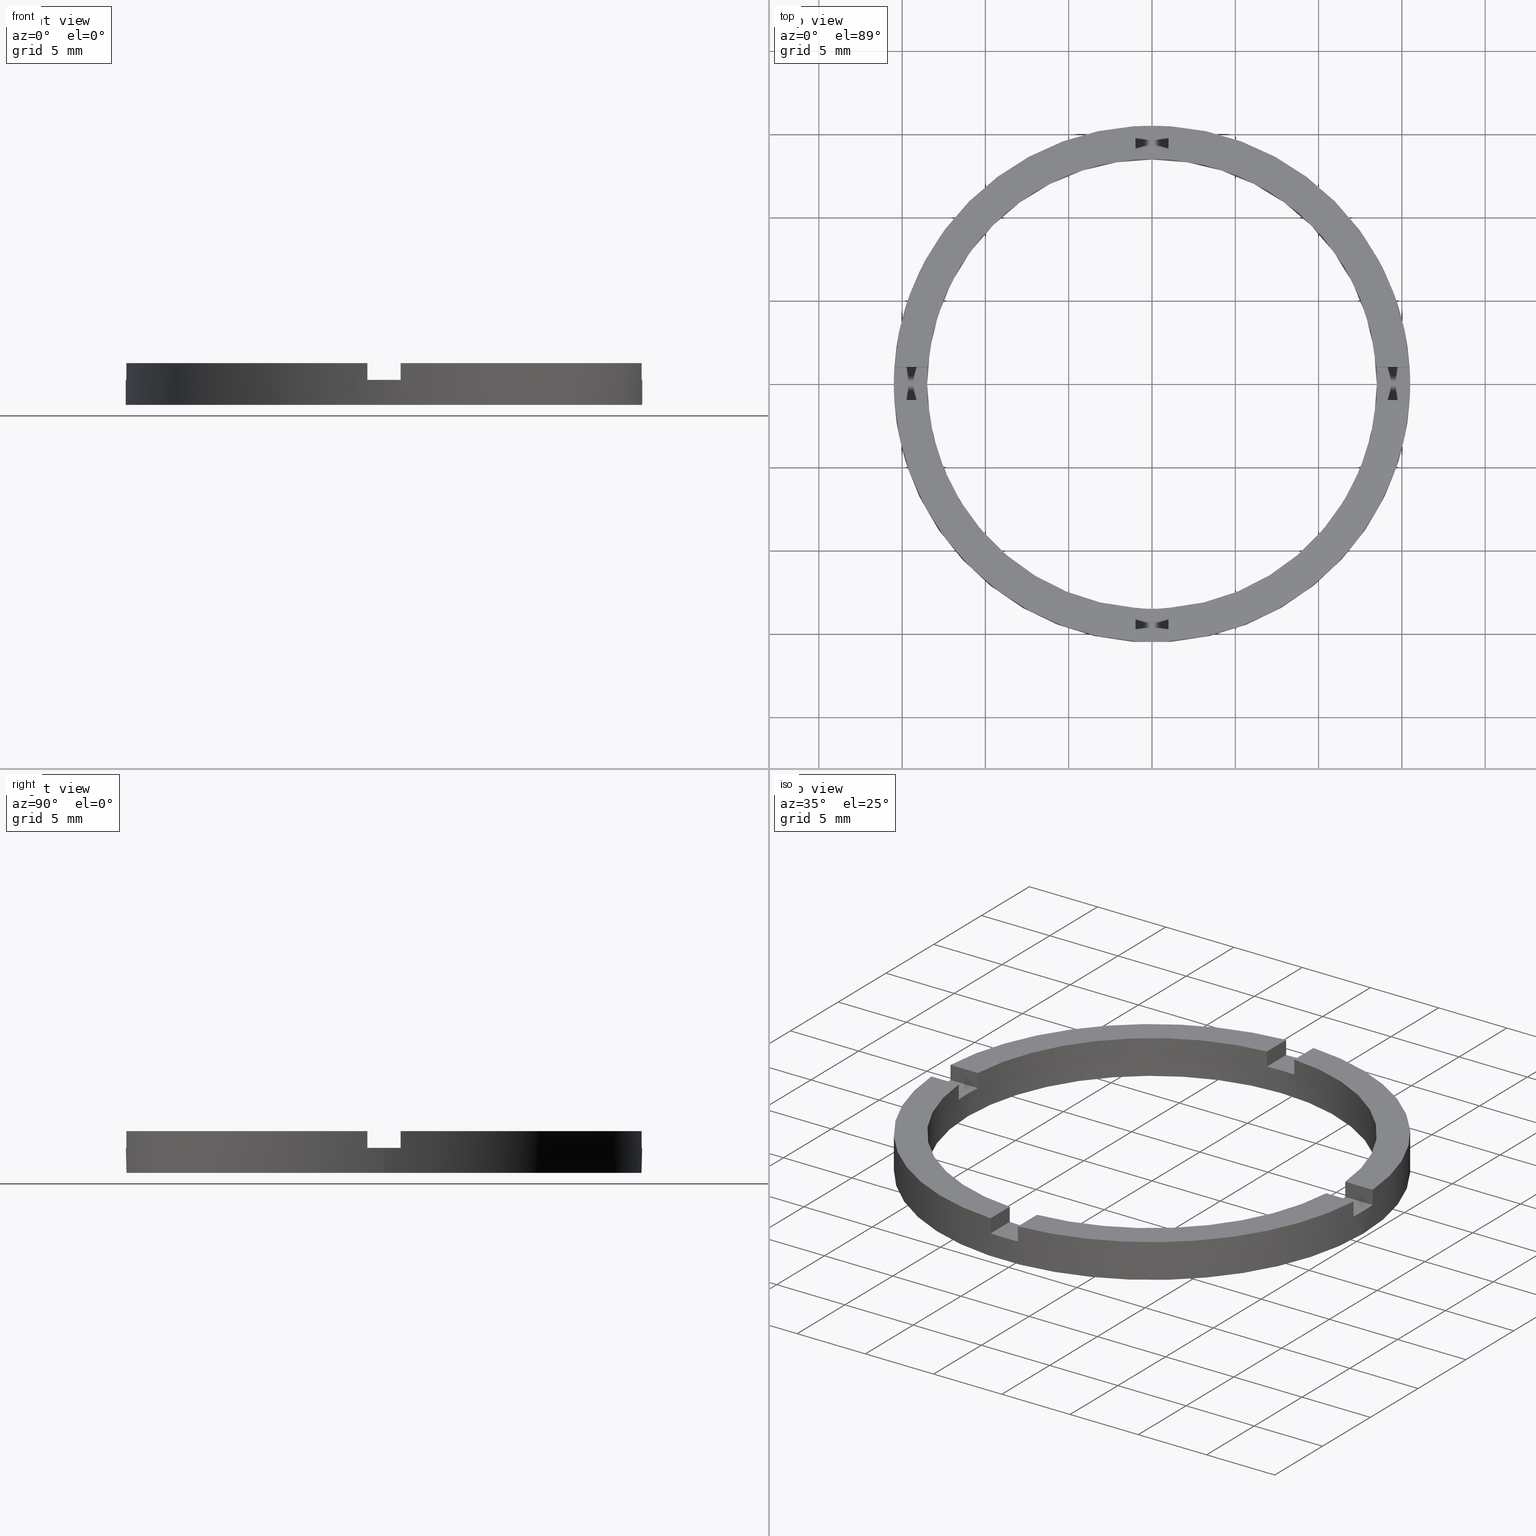
[diagram: canonical four-view strip — front | top / right | iso, engineering-drawing reading convention]
A machine part, canonical four-view strip (front | top / right | iso — engineering-drawing reading convention). The complete STEP part file that produces these views, byte-faithful:
ISO-10303-21;
HEADER;
FILE_DESCRIPTION (( 'STEP AP203' ),
    '1' );
FILE_NAME ('514068.step',
    '2024-12-26T02:34:30',
    ( 'MSI' ),
    ( '' ),
    'SwSTEP 2.0',
    'SolidWorks 2020',
    '' );
FILE_SCHEMA (( 'CONFIG_CONTROL_DESIGN' ));
ENDSEC;

DATA;
#1 = CARTESIAN_POINT ( 'NONE',  ( 13.46291201783627045, 0.9999999999998409050, 2.500000000000000000 ) ) ;
#2 = COORDINATED_UNIVERSAL_TIME_OFFSET ( 8, 0, .AHEAD. ) ;
#3 = CC_DESIGN_APPROVAL ( #642, ( #403 ) ) ;
#4 = EDGE_CURVE ( 'NONE', #238, #32, #122, .T. ) ;
#5 = APPROVAL_STATUS ( 'not_yet_approved' ) ;
#6 = CARTESIAN_POINT ( 'NONE',  ( -1.000000000000162981, -13.46291201783624736, 1.500000000000000000 ) ) ;
#7 = CARTESIAN_POINT ( 'NONE',  ( 0.9999999999998371303, -15.46770829825802984, 1.500000000000000000 ) ) ;
#8 = CARTESIAN_POINT ( 'NONE',  ( 0.9999999999998371303, -15.46770829825802984, 2.500000000000000000 ) ) ;
#9 = PLANE ( 'NONE',  #63 ) ;
#10 = DIRECTION ( 'NONE',  ( 0.000000000000000000, 0.000000000000000000, 1.000000000000000000 ) ) ;
#11 = DIRECTION ( 'NONE',  ( 0.000000000000000000, 0.000000000000000000, 1.000000000000000000 ) ) ;
#12 = VERTEX_POINT ( 'NONE', #776 ) ;
#13 = CARTESIAN_POINT ( 'NONE',  ( -1.000000000000164091, -5.500000000000180300, 1.500000000000000000 ) ) ;
#14 = VERTEX_POINT ( 'NONE', #58 ) ;
#15 = CARTESIAN_POINT ( 'NONE',  ( -15.46770829825801741, -1.000000000000023315, 1.500000000000000000 ) ) ;
#16 = ORIENTED_EDGE ( 'NONE', *, *, #91, .T. ) ;
#17 = AXIS2_PLACEMENT_3D ( 'NONE', #424, #545, #259 ) ;
#18 = ORIENTED_EDGE ( 'NONE', *, *, #701, .F. ) ;
#19 = DIRECTION ( 'NONE',  ( 1.000000000000000000, 0.000000000000000000, 0.000000000000000000 ) ) ;
#20 = PERSON_AND_ORGANIZATION_ROLE ( 'creator' ) ;
#21 = ORIENTED_EDGE ( 'NONE', *, *, #74, .T. ) ;
#22 = CARTESIAN_POINT ( 'NONE',  ( 0.000000000000000000, 0.000000000000000000, 2.500000000000000000 ) ) ;
#23 = EDGE_LOOP ( 'NONE', ( #46, #42, #447, #30 ) ) ;
#24 = ORIENTED_EDGE ( 'NONE', *, *, #778, .F. ) ;
#25 = DIRECTION ( 'NONE',  ( 0.000000000000000000, 0.000000000000000000, 1.000000000000000000 ) ) ;
#26 = VERTEX_POINT ( 'NONE', #587 ) ;
#27 = EDGE_CURVE ( 'NONE', #465, #382, #358, .T. ) ;
#28 = CARTESIAN_POINT ( 'NONE',  ( 0.000000000000000000, 0.000000000000000000, 1.500000000000000000 ) ) ;
#29 = DIRECTION ( 'NONE',  ( 1.000000000000000000, 0.000000000000000000, 0.000000000000000000 ) ) ;
#30 = ORIENTED_EDGE ( 'NONE', *, *, #718, .F. ) ;
#31 = MANIFOLD_SOLID_BREP ( '�г�-����1', #169 ) ;
#32 = VERTEX_POINT ( 'NONE', #53 ) ;
#33 = ORIENTED_EDGE ( 'NONE', *, *, #467, .T. ) ;
#34 = CARTESIAN_POINT ( 'NONE',  ( -1.000000000000024869, 5.500000000000000000, 1.500000000000000000 ) ) ;
#35 = VERTEX_POINT ( 'NONE', #281 ) ;
#36 = CARTESIAN_POINT ( 'NONE',  ( 0.000000000000000000, 0.000000000000000000, 1.500000000000000000 ) ) ;
#37 = CARTESIAN_POINT ( 'NONE',  ( -1.000000000000024869, 5.500000000000000000, 1.500000000000000000 ) ) ;
#38 = ORIENTED_EDGE ( 'NONE', *, *, #70, .T. ) ;
#39 = ORIENTED_EDGE ( 'NONE', *, *, #380, .F. ) ;
#40 = CC_DESIGN_APPROVAL ( #632, ( #665 ) ) ;
#41 = ORIENTED_EDGE ( 'NONE', *, *, #456, .T. ) ;
#42 = ORIENTED_EDGE ( 'NONE', *, *, #95, .T. ) ;
#43 = DIRECTION ( 'NONE',  ( 1.000000000000000000, 0.000000000000000000, 0.000000000000000000 ) ) ;
#44 = CARTESIAN_POINT ( 'NONE',  ( -1.000000000000024869, 13.46291201783625802, 2.500000000000000000 ) ) ;
#45 = PLANE ( 'NONE',  #160 ) ;
#46 = ORIENTED_EDGE ( 'NONE', *, *, #534, .T. ) ;
#47 = ORIENTED_EDGE ( 'NONE', *, *, #440, .F. ) ;
#48 = ORIENTED_EDGE ( 'NONE', *, *, #70, .F. ) ;
#49 = ORIENTED_EDGE ( 'NONE', *, *, #293, .T. ) ;
#50 = ORIENTED_EDGE ( 'NONE', *, *, #91, .F. ) ;
#51 = ORIENTED_EDGE ( 'NONE', *, *, #155, .T. ) ;
#52 = VERTEX_POINT ( 'NONE', #349 ) ;
#53 = CARTESIAN_POINT ( 'NONE',  ( 0.9999999999998369082, -13.46291201783627045, 2.500000000000000000 ) ) ;
#54 = EDGE_LOOP ( 'NONE', ( #204, #300, #460, #547, #566, #443 ) ) ;
#55 = VERTEX_POINT ( 'NONE', #590 ) ;
#56 = ORIENTED_EDGE ( 'NONE', *, *, #67, .F. ) ;
#57 = ORIENTED_EDGE ( 'NONE', *, *, #671, .F. ) ;
#58 = CARTESIAN_POINT ( 'NONE',  ( -1.000000000000162759, -15.46770829825800853, 2.500000000000000000 ) ) ;
#59 = ORIENTED_EDGE ( 'NONE', *, *, #583, .T. ) ;
#60 = CARTESIAN_POINT ( 'NONE',  ( 0.000000000000000000, 0.000000000000000000, 2.500000000000000000 ) ) ;
#61 = ADVANCED_FACE ( 'NONE', ( #120 ), #45, .F. ) ;
#62 = ORIENTED_EDGE ( 'NONE', *, *, #534, .F. ) ;
#63 = AXIS2_PLACEMENT_3D ( 'NONE', #13, #77, #345 ) ;
#64 = ORIENTED_EDGE ( 'NONE', *, *, #184, .T. ) ;
#65 = DIRECTION ( 'NONE',  ( 1.000000000000000000, 1.734723475976807094E-16, 0.000000000000000000 ) ) ;
#66 = VERTEX_POINT ( 'NONE', #528 ) ;
#67 = EDGE_CURVE ( 'NONE', #245, #66, #112, .T. ) ;
#68 = ORIENTED_EDGE ( 'NONE', *, *, #347, .T. ) ;
#69 = PERSON_AND_ORGANIZATION_ROLE ( 'creator' ) ;
#70 = EDGE_CURVE ( 'NONE', #436, #298, #364, .T. ) ;
#71 = AXIS2_PLACEMENT_3D ( 'NONE', #684, #144, #339 ) ;
#72 = DIRECTION ( 'NONE',  ( 0.000000000000000000, 0.000000000000000000, 1.000000000000000000 ) ) ;
#73 = DIRECTION ( 'NONE',  ( 1.000000000000000000, 0.000000000000000000, 0.000000000000000000 ) ) ;
#74 = EDGE_CURVE ( 'NONE', #738, #311, #630, .T. ) ;
#75 = PRODUCT_RELATED_PRODUCT_CATEGORY ( 'detail', '', ( #552 ) ) ;
#76 = AXIS2_PLACEMENT_3D ( 'NONE', #472, #782, #645 ) ;
#77 = DIRECTION ( 'NONE',  ( -1.000000000000000000, -1.301042606982605321E-16, 0.000000000000000000 ) ) ;
#78 = DIRECTION ( 'NONE',  ( 4.336808689942017736E-17, -1.000000000000000000, 0.000000000000000000 ) ) ;
#79 = PLANE ( 'NONE',  #381 ) ;
#80 = CARTESIAN_POINT ( 'NONE',  ( 0.000000000000000000, 0.000000000000000000, 2.500000000000000000 ) ) ;
#81 = CARTESIAN_POINT ( 'NONE',  ( -1.000000000000164091, -5.500000000000180300, 2.500000000000000000 ) ) ;
#82 = AXIS2_PLACEMENT_3D ( 'NONE', #342, #10, #330 ) ;
#83 = DIRECTION ( 'NONE',  ( 1.000000000000000000, 0.000000000000000000, 0.000000000000000000 ) ) ;
#84 = PLANE ( 'NONE',  #689 ) ;
#85 = DIRECTION ( 'NONE',  ( 0.000000000000000000, -0.000000000000000000, 1.000000000000000000 ) ) ;
#86 = AXIS2_PLACEMENT_3D ( 'NONE', #768, #673, #621 ) ;
#87 = DIRECTION ( 'NONE',  ( -1.301042606982605321E-16, 1.000000000000000000, -0.000000000000000000 ) ) ;
#88 = CARTESIAN_POINT ( 'NONE',  ( -15.46770829825802096, 0.9999999999999767963, 2.500000000000000000 ) ) ;
#89 = ADVANCED_FACE ( 'NONE', ( #631 ), #9, .F. ) ;
#90 = FACE_OUTER_BOUND ( 'NONE', #301, .T. ) ;
#91 = EDGE_CURVE ( 'NONE', #230, #436, #648, .T. ) ;
#92 = PLANE ( 'NONE',  #267 ) ;
#93 = CYLINDRICAL_SURFACE ( 'NONE', #370, 15.50000000000000000 ) ;
#94 = VECTOR ( 'NONE', #357, 1000.000000000000000 ) ;
#95 = EDGE_CURVE ( 'NONE', #12, #280, #373, .T. ) ;
#96 = CARTESIAN_POINT ( 'NONE',  ( 0.000000000000000000, 0.000000000000000000, 0.000000000000000000 ) ) ;
#97 = VECTOR ( 'NONE', #783, 1000.000000000000000 ) ;
#98 = ADVANCED_FACE ( 'NONE', ( #392 ), #93, .T. ) ;
#99 = LINE ( 'NONE', #661, #384 ) ;
#100 = APPROVAL_ROLE ( '' ) ;
#101 = DIRECTION ( 'NONE',  ( 1.000000000000000000, 0.000000000000000000, -0.000000000000000000 ) ) ;
#102 = VECTOR ( 'NONE', #335, 1000.000000000000000 ) ;
#103 = EDGE_CURVE ( 'NONE', #736, #280, #643, .T. ) ;
#104 = CARTESIAN_POINT ( 'NONE',  ( -1.000000000000024869, 15.46770829825801741, 2.500000000000000000 ) ) ;
#105 = VECTOR ( 'NONE', #338, 1000.000000000000000 ) ;
#106 = LINE ( 'NONE', #255, #116 ) ;
#107 = CIRCLE ( 'NONE', #416, 13.50000000000000000 ) ;
#108 = CC_DESIGN_PERSON_AND_ORGANIZATION_ASSIGNMENT ( #505, #69, ( #665 ) ) ;
#109 = LINE ( 'NONE', #272, #619 ) ;
#110 = ADVANCED_BREP_SHAPE_REPRESENTATION ( '514068', ( #31, #176 ), #464 ) ;
#111 = CARTESIAN_POINT ( 'NONE',  ( 13.46291201783627045, 0.9999999999998409050, 2.500000000000000000 ) ) ;
#112 = LINE ( 'NONE', #709, #114 ) ;
#113 = AXIS2_PLACEMENT_3D ( 'NONE', #136, #755, #147 ) ;
#114 = VECTOR ( 'NONE', #475, 1000.000000000000000 ) ;
#115 = DIRECTION ( 'NONE',  ( 1.301042606982605321E-16, -1.000000000000000000, 0.000000000000000000 ) ) ;
#116 = VECTOR ( 'NONE', #115, 1000.000000000000000 ) ;
#117 = CIRCLE ( 'NONE', #448, 15.50000000000000000 ) ;
#118 = CARTESIAN_POINT ( 'NONE',  ( 0.000000000000000000, 0.000000000000000000, 2.500000000000000000 ) ) ;
#119 = LINE ( 'NONE', #606, #362 ) ;
#120 = FACE_OUTER_BOUND ( 'NONE', #313, .T. ) ;
#121 = EDGE_CURVE ( 'NONE', #218, #186, #616, .T. ) ;
#122 = LINE ( 'NONE', #722, #620 ) ;
#123 = PLANE ( 'NONE',  #488 ) ;
#124 = FACE_OUTER_BOUND ( 'NONE', #375, .T. ) ;
#125 = AXIS2_PLACEMENT_3D ( 'NONE', #405, #629, #687 ) ;
#126 = LINE ( 'NONE', #127, #128 ) ;
#127 = CARTESIAN_POINT ( 'NONE',  ( 13.46291201783624736, -1.000000000000159206, 2.500000000000000000 ) ) ;
#128 = VECTOR ( 'NONE', #11, 1000.000000000000000 ) ;
#129 = APPLICATION_CONTEXT ( 'configuration controlled 3d designs of mechanical parts and assemblies' ) ;
#130 = CIRCLE ( 'NONE', #656, 13.50000000000000000 ) ;
#131 = EDGE_CURVE ( 'NONE', #571, #208, #634, .T. ) ;
#132 = CARTESIAN_POINT ( 'NONE',  ( -1.000000000000162981, -13.46291201783624736, 2.500000000000000000 ) ) ;
#133 = AXIS2_PLACEMENT_3D ( 'NONE', #686, #377, #139 ) ;
#134 = CARTESIAN_POINT ( 'NONE',  ( 0.9999999999999751310, 13.46291201783626335, 2.500000000000000000 ) ) ;
#135 = DIRECTION ( 'NONE',  ( 1.000000000000000000, 1.734723475976807094E-16, -0.000000000000000000 ) ) ;
#136 = CARTESIAN_POINT ( 'NONE',  ( 0.000000000000000000, 0.000000000000000000, 1.500000000000000000 ) ) ;
#137 = SECURITY_CLASSIFICATION_LEVEL ( 'unclassified' ) ;
#138 = AXIS2_PLACEMENT_3D ( 'NONE', #28, #337, #83 ) ;
#139 = DIRECTION ( 'NONE',  ( -1.000000000000000000, 0.000000000000000000, 0.000000000000000000 ) ) ;
#140 = VECTOR ( 'NONE', #419, 1000.000000000000000 ) ;
#141 = LINE ( 'NONE', #88, #178 ) ;
#142 = EDGE_CURVE ( 'NONE', #239, #437, #369, .T. ) ;
#143 = LINE ( 'NONE', #521, #662 ) ;
#144 = DIRECTION ( 'NONE',  ( 0.000000000000000000, 0.000000000000000000, 1.000000000000000000 ) ) ;
#145 = CIRCLE ( 'NONE', #536, 13.50000000000000000 ) ;
#146 = DIRECTION ( 'NONE',  ( 1.000000000000000000, 0.000000000000000000, -0.000000000000000000 ) ) ;
#147 = DIRECTION ( 'NONE',  ( 1.000000000000000000, 0.000000000000000000, 0.000000000000000000 ) ) ;
#148 = FACE_OUTER_BOUND ( 'NONE', #327, .T. ) ;
#149 = CIRCLE ( 'NONE', #774, 13.50000000000000000 ) ;
#150 = DIRECTION ( 'NONE',  ( 0.000000000000000000, 0.000000000000000000, 1.000000000000000000 ) ) ;
#151 = AXIS2_PLACEMENT_3D ( 'NONE', #22, #264, #614 ) ;
#152 = DIRECTION ( 'NONE',  ( 1.000000000000000000, 0.000000000000000000, -0.000000000000000000 ) ) ;
#153 = CIRCLE ( 'NONE', #433, 15.50000000000000000 ) ;
#154 = DIRECTION ( 'NONE',  ( 1.000000000000000000, 1.734723475976807094E-16, -0.000000000000000000 ) ) ;
#155 = EDGE_CURVE ( 'NONE', #218, #738, #389, .T. ) ;
#156 = CARTESIAN_POINT ( 'NONE',  ( 0.000000000000000000, 0.000000000000000000, 1.500000000000000000 ) ) ;
#157 = DIRECTION ( 'NONE',  ( 1.000000000000000000, 0.000000000000000000, 0.000000000000000000 ) ) ;
#158 = ADVANCED_FACE ( 'NONE', ( #387 ), #636, .F. ) ;
#159 = VECTOR ( 'NONE', #236, 1000.000000000000000 ) ;
#160 = AXIS2_PLACEMENT_3D ( 'NONE', #707, #466, #237 ) ;
#161 = LINE ( 'NONE', #240, #431 ) ;
#162 = ORIENTED_EDGE ( 'NONE', *, *, #671, .T. ) ;
#163 = VECTOR ( 'NONE', #223, 1000.000000000000000 ) ;
#164 = DIRECTION ( 'NONE',  ( 0.000000000000000000, 0.000000000000000000, 1.000000000000000000 ) ) ;
#165 = ORIENTED_EDGE ( 'NONE', *, *, #604, .F. ) ;
#166 = CIRCLE ( 'NONE', #86, 15.50000000000000000 ) ;
#167 = VERTEX_POINT ( 'NONE', #531 ) ;
#168 = LINE ( 'NONE', #1, #140 ) ;
#169 = CLOSED_SHELL ( 'NONE', ( #352, #650, #468, #407, #170, #415, #535, #98, #233, #346, #292, #775, #708, #89, #770, #61, #283, #599, #158, #657, #716 ) ) ;
#170 = ADVANCED_FACE ( 'NONE', ( #90 ), #92, .T. ) ;
#171 = FACE_OUTER_BOUND ( 'NONE', #724, .T. ) ;
#172 = PERSON_AND_ORGANIZATION_ROLE ( 'classification_officer' ) ;
#173 = CARTESIAN_POINT ( 'NONE',  ( 15.46770829825800853, -1.000000000000159206, 2.500000000000000000 ) ) ;
#174 = ORIENTED_EDGE ( 'NONE', *, *, #257, .F. ) ;
#175 = VECTOR ( 'NONE', #135, 1000.000000000000000 ) ;
#176 = AXIS2_PLACEMENT_3D ( 'NONE', #96, #164, #538 ) ;
#177 = ORIENTED_EDGE ( 'NONE', *, *, #355, .T. ) ;
#178 = VECTOR ( 'NONE', #694, 1000.000000000000000 ) ;
#179 = EDGE_LOOP ( 'NONE', ( #50, #730, #476, #565, #731, #463, #434, #309, #316, #68, #573, #48 ) ) ;
#180 = VECTOR ( 'NONE', #729, 1000.000000000000000 ) ;
#181 = FACE_OUTER_BOUND ( 'NONE', #563, .T. ) ;
#182 = EDGE_LOOP ( 'NONE', ( #307, #201, #704, #712 ) ) ;
#183 = VECTOR ( 'NONE', #721, 1000.000000000000000 ) ;
#184 = EDGE_CURVE ( 'NONE', #32, #617, #644, .T. ) ;
#185 = CARTESIAN_POINT ( 'NONE',  ( 0.9999999999999751310, 15.46770829825802096, 2.500000000000000000 ) ) ;
#186 = VERTEX_POINT ( 'NONE', #206 ) ;
#187 = VECTOR ( 'NONE', #408, 1000.000000000000000 ) ;
#188 = ORIENTED_EDGE ( 'NONE', *, *, #486, .T. ) ;
#189 = LINE ( 'NONE', #198, #695 ) ;
#190 = CC_DESIGN_DATE_AND_TIME_ASSIGNMENT ( #781, #248, ( #403 ) ) ;
#191 = UNCERTAINTY_MEASURE_WITH_UNIT (LENGTH_MEASURE( 1.000000000000000082E-05 ), #646, 'distance_accuracy_value', 'NONE');
#192 = ORIENTED_EDGE ( 'NONE', *, *, #142, .T. ) ;
#193 = DIRECTION ( 'NONE',  ( 0.000000000000000000, 0.000000000000000000, 1.000000000000000000 ) ) ;
#194 = CARTESIAN_POINT ( 'NONE',  ( -13.46291201783626157, 0.9999999999999770184, 1.500000000000000000 ) ) ;
#195 = ORIENTED_EDGE ( 'NONE', *, *, #310, .F. ) ;
#196 = MECHANICAL_CONTEXT ( 'NONE', #558, 'mechanical' ) ;
#197 = ORIENTED_EDGE ( 'NONE', *, *, #422, .T. ) ;
#198 = CARTESIAN_POINT ( 'NONE',  ( 0.9999999999999751310, 15.46770829825802096, 2.500000000000000000 ) ) ;
#199 = ORIENTED_EDGE ( 'NONE', *, *, #221, .T. ) ;
#200 = DIRECTION ( 'NONE',  ( -0.000000000000000000, -0.000000000000000000, -1.000000000000000000 ) ) ;
#201 = ORIENTED_EDGE ( 'NONE', *, *, #380, .T. ) ;
#202 = EDGE_LOOP ( 'NONE', ( #591, #696, #557, #692 ) ) ;
#203 = PERSON_AND_ORGANIZATION_ROLE ( 'design_owner' ) ;
#204 = ORIENTED_EDGE ( 'NONE', *, *, #257, .T. ) ;
#205 = AXIS2_PLACEMENT_3D ( 'NONE', #432, #603, #65 ) ;
#206 = CARTESIAN_POINT ( 'NONE',  ( -1.000000000000024869, 13.46291201783625802, 1.500000000000000000 ) ) ;
#207 = EDGE_LOOP ( 'NONE', ( #286, #41, #56, #577 ) ) ;
#208 = VERTEX_POINT ( 'NONE', #15 ) ;
#209 = DIRECTION ( 'NONE',  ( 1.000000000000000000, 0.000000000000000000, 0.000000000000000000 ) ) ;
#210 = ORIENTED_EDGE ( 'NONE', *, *, #429, .F. ) ;
#211 = AXIS2_PLACEMENT_3D ( 'NONE', #578, #635, #216 ) ;
#212 = EDGE_LOOP ( 'NONE', ( #21, #560, #328, #51 ) ) ;
#213 = DIRECTION ( 'NONE',  ( -0.000000000000000000, -0.000000000000000000, -1.000000000000000000 ) ) ;
#214 = ORIENTED_EDGE ( 'NONE', *, *, #131, .F. ) ;
#215 = EDGE_CURVE ( 'NONE', #294, #368, #391, .T. ) ;
#216 = DIRECTION ( 'NONE',  ( 0.000000000000000000, 0.000000000000000000, -1.000000000000000000 ) ) ;
#217 = DIRECTION ( 'NONE',  ( -0.000000000000000000, -0.000000000000000000, -1.000000000000000000 ) ) ;
#218 = VERTEX_POINT ( 'NONE', #680 ) ;
#219 = CARTESIAN_POINT ( 'NONE',  ( 0.000000000000000000, 0.000000000000000000, 1.500000000000000000 ) ) ;
#220 = PERSON_AND_ORGANIZATION ( #764, #490 ) ;
#221 = EDGE_CURVE ( 'NONE', #167, #294, #360, .T. ) ;
#222 = EDGE_LOOP ( 'NONE', ( #227, #290, #57, #493 ) ) ;
#223 = DIRECTION ( 'NONE',  ( -1.000000000000000000, -1.734723475976807094E-16, 0.000000000000000000 ) ) ;
#224 = CARTESIAN_POINT ( 'NONE',  ( 5.499999999999994671, 0.9999999999998404610, 2.500000000000000000 ) ) ;
#225 = ORIENTED_EDGE ( 'NONE', *, *, #74, .F. ) ;
#226 = DIRECTION ( 'NONE',  ( 1.000000000000000000, 4.336808689942017736E-17, 0.000000000000000000 ) ) ;
#227 = ORIENTED_EDGE ( 'NONE', *, *, #422, .F. ) ;
#228 = ORIENTED_EDGE ( 'NONE', *, *, #778, .T. ) ;
#229 = DATE_AND_TIME ( #498, #752 ) ;
#230 = VERTEX_POINT ( 'NONE', #699 ) ;
#231 = CARTESIAN_POINT ( 'NONE',  ( -15.46770829825801741, -1.000000000000023315, 2.500000000000000000 ) ) ;
#232 = APPROVAL_PERSON_ORGANIZATION ( #247, #632, #512 ) ;
#233 = ADVANCED_FACE ( 'NONE', ( #639 ), #371, .F. ) ;
#234 = EDGE_LOOP ( 'NONE', ( #576, #319, #304, #585, #49, #165, #177, #47, #485, #214, #728, #568 ) ) ;
#235 = CARTESIAN_POINT ( 'NONE',  ( 0.000000000000000000, 0.000000000000000000, 2.500000000000000000 ) ) ;
#236 = DIRECTION ( 'NONE',  ( -0.000000000000000000, -1.000000000000000000, -0.000000000000000000 ) ) ;
#237 = DIRECTION ( 'NONE',  ( -1.000000000000000000, -4.336808689942017736E-17, 0.000000000000000000 ) ) ;
#238 = VERTEX_POINT ( 'NONE', #374 ) ;
#239 = VERTEX_POINT ( 'NONE', #275 ) ;
#240 = CARTESIAN_POINT ( 'NONE',  ( 5.499999999999994671, 0.9999999999998404610, 1.500000000000000000 ) ) ;
#241 = ORIENTED_EDGE ( 'NONE', *, *, #430, .F. ) ;
#242 = PERSON_AND_ORGANIZATION ( #764, #490 ) ;
#243 = DIRECTION ( 'NONE',  ( 0.000000000000000000, 0.000000000000000000, 1.000000000000000000 ) ) ;
#244 =( NAMED_UNIT ( * ) PLANE_ANGLE_UNIT ( ) SI_UNIT ( $, .RADIAN. ) );
#245 = VERTEX_POINT ( 'NONE', #7 ) ;
#246 = CARTESIAN_POINT ( 'NONE',  ( 15.46770829825800853, -1.000000000000159206, 1.500000000000000000 ) ) ;
#247 = PERSON_AND_ORGANIZATION ( #764, #490 ) ;
#248 = DATE_TIME_ROLE ( 'classification_date' ) ;
#249 = CARTESIAN_POINT ( 'NONE',  ( -1.000000000000024869, 15.46770829825801741, 2.500000000000000000 ) ) ;
#250 = VERTEX_POINT ( 'NONE', #581 ) ;
#251 = DATE_AND_TIME ( #739, #754 ) ;
#252 = DIRECTION ( 'NONE',  ( 0.000000000000000000, 0.000000000000000000, 1.000000000000000000 ) ) ;
#253 = DIRECTION ( 'NONE',  ( 1.000000000000000000, 0.000000000000000000, -0.000000000000000000 ) ) ;
#254 = EDGE_CURVE ( 'NONE', #167, #230, #107, .T. ) ;
#255 = CARTESIAN_POINT ( 'NONE',  ( -1.000000000000164091, -5.500000000000180300, 1.500000000000000000 ) ) ;
#256 = LOCAL_TIME ( 10, 34, 30.00000000000000000, #2 ) ;
#257 = EDGE_CURVE ( 'NONE', #55, #571, #117, .T. ) ;
#258 = EDGE_CURVE ( 'NONE', #617, #543, #109, .T. ) ;
#259 = DIRECTION ( 'NONE',  ( 1.000000000000000000, 0.000000000000000000, 0.000000000000000000 ) ) ;
#260 = CARTESIAN_POINT ( 'NONE',  ( 0.9999999999999751310, 5.500000000000000000, 2.500000000000000000 ) ) ;
#261 = APPROVAL_PERSON_ORGANIZATION ( #772, #642, #607 ) ;
#262 = EDGE_CURVE ( 'NONE', #546, #479, #385, .T. ) ;
#263 = COORDINATED_UNIVERSAL_TIME_OFFSET ( 8, 0, .AHEAD. ) ;
#264 = DIRECTION ( 'NONE',  ( -0.000000000000000000, -0.000000000000000000, -1.000000000000000000 ) ) ;
#265 = APPROVAL_DATE_TIME ( #530, #632 ) ;
#266 = SHAPE_DEFINITION_REPRESENTATION ( #658, #110 ) ;
#267 = AXIS2_PLACEMENT_3D ( 'NONE', #351, #150, #525 ) ;
#268 = CALENDAR_DATE ( 2024, 26, 12 ) ;
#269 = CARTESIAN_POINT ( 'NONE',  ( 13.46291201783624736, -1.000000000000159206, 2.500000000000000000 ) ) ;
#270 = DIRECTION ( 'NONE',  ( 1.000000000000000000, 0.000000000000000000, 0.000000000000000000 ) ) ;
#271 = AXIS2_PLACEMENT_3D ( 'NONE', #691, #457, #73 ) ;
#272 = CARTESIAN_POINT ( 'NONE',  ( 5.499999999999994671, -1.000000000000159650, 2.500000000000000000 ) ) ;
#273 = CARTESIAN_POINT ( 'NONE',  ( 0.000000000000000000, 0.000000000000000000, 2.500000000000000000 ) ) ;
#274 = DIRECTION ( 'NONE',  ( 0.000000000000000000, 1.000000000000000000, 0.000000000000000000 ) ) ;
#275 = CARTESIAN_POINT ( 'NONE',  ( 15.46770829825802984, 0.9999999999998409050, 2.500000000000000000 ) ) ;
#276 = EDGE_CURVE ( 'NONE', #230, #26, #376, .T. ) ;
#277 = AXIS2_PLACEMENT_3D ( 'NONE', #273, #527, #270 ) ;
#278 = CARTESIAN_POINT ( 'NONE',  ( -5.500000000000185629, -1.000000000000021538, 1.500000000000000000 ) ) ;
#279 = ORIENTED_EDGE ( 'NONE', *, *, #284, .F. ) ;
#280 = VERTEX_POINT ( 'NONE', #453 ) ;
#281 = CARTESIAN_POINT ( 'NONE',  ( 15.46770829825802984, 0.9999999999998409050, 1.500000000000000000 ) ) ;
#282 = ORIENTED_EDGE ( 'NONE', *, *, #329, .F. ) ;
#283 = ADVANCED_FACE ( 'NONE', ( #366 ), #84, .F. ) ;
#284 = EDGE_CURVE ( 'NONE', #239, #35, #119, .T. ) ;
#285 = ORIENTED_EDGE ( 'NONE', *, *, #323, .T. ) ;
#286 = ORIENTED_EDGE ( 'NONE', *, *, #4, .T. ) ;
#287 = EDGE_LOOP ( 'NONE', ( #555, #324, #62, #582 ) ) ;
#288 =( NAMED_UNIT ( * ) SI_UNIT ( $, .STERADIAN. ) SOLID_ANGLE_UNIT ( ) );
#289 = ORIENTED_EDGE ( 'NONE', *, *, #310, .T. ) ;
#290 = ORIENTED_EDGE ( 'NONE', *, *, #262, .T. ) ;
#291 = CARTESIAN_POINT ( 'NONE',  ( -1.000000000000024869, 15.46770829825801741, 1.500000000000000000 ) ) ;
#292 = ADVANCED_FACE ( 'NONE', ( #633 ), #554, .F. ) ;
#293 = EDGE_CURVE ( 'NONE', #238, #245, #637, .T. ) ;
#294 = VERTEX_POINT ( 'NONE', #246 ) ;
#295 = CARTESIAN_POINT ( 'NONE',  ( -1.000000000000162981, -13.46291201783624736, 2.500000000000000000 ) ) ;
#296 = PERSON_AND_ORGANIZATION_ROLE ( 'design_supplier' ) ;
#297 = DIRECTION ( 'NONE',  ( 0.000000000000000000, 0.000000000000000000, 1.000000000000000000 ) ) ;
#298 = VERTEX_POINT ( 'NONE', #537 ) ;
#299 = CC_DESIGN_PERSON_AND_ORGANIZATION_ASSIGNMENT ( #517, #172, ( #403 ) ) ;
#300 = ORIENTED_EDGE ( 'NONE', *, *, #131, .T. ) ;
#301 = EDGE_LOOP ( 'NONE', ( #318, #544, #740, #550 ) ) ;
#302 = ORIENTED_EDGE ( 'NONE', *, *, #456, .F. ) ;
#303 = AXIS2_PLACEMENT_3D ( 'NONE', #717, #252, #483 ) ;
#304 = ORIENTED_EDGE ( 'NONE', *, *, #334, .T. ) ;
#305 = ORIENTED_EDGE ( 'NONE', *, *, #103, .T. ) ;
#306 = ORIENTED_EDGE ( 'NONE', *, *, #401, .F. ) ;
#307 = ORIENTED_EDGE ( 'NONE', *, *, #221, .F. ) ;
#308 = ORIENTED_EDGE ( 'NONE', *, *, #254, .F. ) ;
#309 = ORIENTED_EDGE ( 'NONE', *, *, #539, .T. ) ;
#310 = EDGE_CURVE ( 'NONE', #465, #715, #106, .T. ) ;
#311 = VERTEX_POINT ( 'NONE', #291 ) ;
#312 = ORIENTED_EDGE ( 'NONE', *, *, #27, .T. ) ;
#313 = EDGE_LOOP ( 'NONE', ( #192, #333, #454, #279 ) ) ;
#314 = CARTESIAN_POINT ( 'NONE',  ( -1.000000000000024869, 13.46291201783625802, 2.500000000000000000 ) ) ;
#315 = AXIS2_PLACEMENT_3D ( 'NONE', #595, #777, #101 ) ;
#316 = ORIENTED_EDGE ( 'NONE', *, *, #551, .F. ) ;
#317 = ORIENTED_EDGE ( 'NONE', *, *, #510, .T. ) ;
#318 = ORIENTED_EDGE ( 'NONE', *, *, #258, .F. ) ;
#319 = ORIENTED_EDGE ( 'NONE', *, *, #215, .F. ) ;
#320 = CARTESIAN_POINT ( 'NONE',  ( 0.000000000000000000, 0.000000000000000000, 2.500000000000000000 ) ) ;
#321 = ORIENTED_EDGE ( 'NONE', *, *, #572, .T. ) ;
#322 = ORIENTED_EDGE ( 'NONE', *, *, #592, .F. ) ;
#323 = EDGE_CURVE ( 'NONE', #685, #186, #622, .T. ) ;
#324 = ORIENTED_EDGE ( 'NONE', *, *, #664, .F. ) ;
#325 = AXIS2_PLACEMENT_3D ( 'NONE', #409, #597, #473 ) ;
#326 = CARTESIAN_POINT ( 'NONE',  ( 0.000000000000000000, 0.000000000000000000, 1.500000000000000000 ) ) ;
#327 = EDGE_LOOP ( 'NONE', ( #452, #564, #306, #289 ) ) ;
#328 = ORIENTED_EDGE ( 'NONE', *, *, #121, .F. ) ;
#329 = EDGE_CURVE ( 'NONE', #52, #439, #624, .T. ) ;
#330 = DIRECTION ( 'NONE',  ( 1.000000000000000000, 0.000000000000000000, 0.000000000000000000 ) ) ;
#331 = ORIENTED_EDGE ( 'NONE', *, *, #600, .F. ) ;
#332 = CARTESIAN_POINT ( 'NONE',  ( 0.000000000000000000, 0.000000000000000000, 0.000000000000000000 ) ) ;
#333 = ORIENTED_EDGE ( 'NONE', *, *, #471, .T. ) ;
#334 = EDGE_CURVE ( 'NONE', #294, #543, #99, .T. ) ;
#335 = DIRECTION ( 'NONE',  ( -0.000000000000000000, -0.000000000000000000, -1.000000000000000000 ) ) ;
#336 = DIRECTION ( 'NONE',  ( 1.000000000000000000, 0.000000000000000000, 0.000000000000000000 ) ) ;
#337 = DIRECTION ( 'NONE',  ( -0.000000000000000000, 0.000000000000000000, 1.000000000000000000 ) ) ;
#338 = DIRECTION ( 'NONE',  ( -0.000000000000000000, -0.000000000000000000, -1.000000000000000000 ) ) ;
#339 = DIRECTION ( 'NONE',  ( 1.000000000000000000, 0.000000000000000000, 0.000000000000000000 ) ) ;
#340 = PLANE ( 'NONE',  #561 ) ;
#341 = AXIS2_PLACEMENT_3D ( 'NONE', #118, #193, #482 ) ;
#342 = CARTESIAN_POINT ( 'NONE',  ( 0.000000000000000000, 0.000000000000000000, 1.500000000000000000 ) ) ;
#343 = CARTESIAN_POINT ( 'NONE',  ( -15.46770829825802096, 0.9999999999999767963, 2.500000000000000000 ) ) ;
#344 = CARTESIAN_POINT ( 'NONE',  ( 0.9999999999999751310, 15.46770829825802096, 1.500000000000000000 ) ) ;
#345 = DIRECTION ( 'NONE',  ( 1.301042606982605321E-16, -1.000000000000000000, 0.000000000000000000 ) ) ;
#346 = ADVANCED_FACE ( 'NONE', ( #641 ), #363, .F. ) ;
#347 = EDGE_CURVE ( 'NONE', #359, #736, #396, .T. ) ;
#348 = PLANE ( 'NONE',  #325 ) ;
#349 = CARTESIAN_POINT ( 'NONE',  ( 0.9999999999999751310, 13.46291201783626335, 2.500000000000000000 ) ) ;
#350 = AXIS2_PLACEMENT_3D ( 'NONE', #332, #243, #43 ) ;
#351 = CARTESIAN_POINT ( 'NONE',  ( 0.000000000000000000, 0.000000000000000000, 2.500000000000000000 ) ) ;
#352 = ADVANCED_FACE ( 'NONE', ( #124 ), #651, .F. ) ;
#353 = DIRECTION ( 'NONE',  ( 0.000000000000000000, 0.000000000000000000, 1.000000000000000000 ) ) ;
#354 = DIRECTION ( 'NONE',  ( 1.000000000000000000, 0.000000000000000000, 0.000000000000000000 ) ) ;
#355 = EDGE_CURVE ( 'NONE', #715, #14, #649, .T. ) ;
#356 = DIRECTION ( 'NONE',  ( 0.000000000000000000, 0.000000000000000000, 1.000000000000000000 ) ) ;
#357 = DIRECTION ( 'NONE',  ( -0.000000000000000000, -0.000000000000000000, -1.000000000000000000 ) ) ;
#358 = LINE ( 'NONE', #295, #627 ) ;
#359 = VERTEX_POINT ( 'NONE', #194 ) ;
#360 = LINE ( 'NONE', #519, #365 ) ;
#361 = VECTOR ( 'NONE', #556, 1000.000000000000000 ) ;
#362 = VECTOR ( 'NONE', #200, 1000.000000000000000 ) ;
#363 = PLANE ( 'NONE',  #205 ) ;
#364 = CIRCLE ( 'NONE', #406, 13.50000000000000000 ) ;
#365 = VECTOR ( 'NONE', #638, 1000.000000000000000 ) ;
#366 = FACE_OUTER_BOUND ( 'NONE', #182, .T. ) ;
#367 = CARTESIAN_POINT ( 'NONE',  ( 0.000000000000000000, 0.000000000000000000, 2.500000000000000000 ) ) ;
#368 = VERTEX_POINT ( 'NONE', #492 ) ;
#369 = LINE ( 'NONE', #224, #361 ) ;
#370 = AXIS2_PLACEMENT_3D ( 'NONE', #80, #217, #763 ) ;
#371 = CYLINDRICAL_SURFACE ( 'NONE', #151, 13.50000000000000000 ) ;
#372 = DATE_TIME_ROLE ( 'creation_date' ) ;
#373 = LINE ( 'NONE', #586, #102 ) ;
#374 = CARTESIAN_POINT ( 'NONE',  ( 0.9999999999998371303, -15.46770829825802984, 2.500000000000000000 ) ) ;
#375 = EDGE_LOOP ( 'NONE', ( #496, #16, #751, #745, #305, #562, #746, #487, #580, #302, #64, #39 ) ) ;
#376 = CIRCLE ( 'NONE', #82, 13.50000000000000000 ) ;
#377 = DIRECTION ( 'NONE',  ( -0.000000000000000000, -0.000000000000000000, -1.000000000000000000 ) ) ;
#378 = VECTOR ( 'NONE', #274, 1000.000000000000000 ) ;
#379 = CARTESIAN_POINT ( 'NONE',  ( 13.50000000000000000, 1.653273178848926867E-15, 2.500000000000000000 ) ) ;
#380 = EDGE_CURVE ( 'NONE', #167, #617, #126, .T. ) ;
#381 = AXIS2_PLACEMENT_3D ( 'NONE', #156, #523, #146 ) ;
#382 = VERTEX_POINT ( 'NONE', #132 ) ;
#383 = CARTESIAN_POINT ( 'NONE',  ( 0.000000000000000000, 0.000000000000000000, 2.500000000000000000 ) ) ;
#384 = VECTOR ( 'NONE', #610, 1000.000000000000000 ) ;
#385 = CIRCLE ( 'NONE', #623, 15.50000000000000000 ) ;
#386 = DIRECTION ( 'NONE',  ( 0.000000000000000000, 0.000000000000000000, 1.000000000000000000 ) ) ;
#387 = FACE_OUTER_BOUND ( 'NONE', #549, .T. ) ;
#388 = CARTESIAN_POINT ( 'NONE',  ( 0.000000000000000000, 0.000000000000000000, 1.500000000000000000 ) ) ;
#389 = LINE ( 'NONE', #611, #378 ) ;
#390 = CARTESIAN_POINT ( 'NONE',  ( 5.499999999999994671, -1.000000000000159650, 1.500000000000000000 ) ) ;
#391 = CIRCLE ( 'NONE', #594, 15.50000000000000000 ) ;
#392 = FACE_OUTER_BOUND ( 'NONE', #234, .T. ) ;
#393 = EDGE_CURVE ( 'NONE', #218, #52, #398, .T. ) ;
#394 = EDGE_CURVE ( 'NONE', #470, #250, #655, .T. ) ;
#395 = CARTESIAN_POINT ( 'NONE',  ( 15.50000000000000000, 1.898202538678397557E-15, 2.500000000000000000 ) ) ;
#396 = CIRCLE ( 'NONE', #303, 13.50000000000000000 ) ;
#397 = DIRECTION ( 'NONE',  ( 0.000000000000000000, 0.000000000000000000, 1.000000000000000000 ) ) ;
#398 = LINE ( 'NONE', #134, #399 ) ;
#399 = VECTOR ( 'NONE', #446, 1000.000000000000000 ) ;
#400 = CARTESIAN_POINT ( 'NONE',  ( 0.9999999999998359090, -5.500000000000180300, 1.500000000000000000 ) ) ;
#401 = EDGE_CURVE ( 'NONE', #465, #66, #130, .T. ) ;
#402 = DIRECTION ( 'NONE',  ( 1.000000000000000000, 0.000000000000000000, 0.000000000000000000 ) ) ;
#403 = SECURITY_CLASSIFICATION ( '', '', #137 ) ;
#404 = DIRECTION ( 'NONE',  ( -1.000000000000000000, -1.734723475976807094E-16, 0.000000000000000000 ) ) ;
#405 = CARTESIAN_POINT ( 'NONE',  ( 0.000000000000000000, 0.000000000000000000, 1.500000000000000000 ) ) ;
#406 = AXIS2_PLACEMENT_3D ( 'NONE', #769, #532, #157 ) ;
#407 = ADVANCED_FACE ( 'NONE', ( #181 ), #726, .T. ) ;
#408 = DIRECTION ( 'NONE',  ( -0.000000000000000000, -1.000000000000000000, -0.000000000000000000 ) ) ;
#409 = CARTESIAN_POINT ( 'NONE',  ( 0.000000000000000000, 0.000000000000000000, 1.500000000000000000 ) ) ;
#410 = VECTOR ( 'NONE', #640, 1000.000000000000000 ) ;
#411 = VECTOR ( 'NONE', #154, 1000.000000000000000 ) ;
#412 = DIRECTION ( 'NONE',  ( 1.000000000000000000, 0.000000000000000000, -0.000000000000000000 ) ) ;
#413 = CARTESIAN_POINT ( 'NONE',  ( -13.50000000000000000, 0.000000000000000000, 2.500000000000000000 ) ) ;
#414 = LINE ( 'NONE', #81, #438 ) ;
#415 = ADVANCED_FACE ( 'NONE', ( #449 ), #596, .T. ) ;
#416 = AXIS2_PLACEMENT_3D ( 'NONE', #744, #514, #750 ) ;
#417 = FACE_OUTER_BOUND ( 'NONE', #570, .T. ) ;
#418 = CARTESIAN_POINT ( 'NONE',  ( -5.500000000000185629, 0.9999999999999785727, 1.500000000000000000 ) ) ;
#419 = DIRECTION ( 'NONE',  ( -0.000000000000000000, -0.000000000000000000, -1.000000000000000000 ) ) ;
#420 = LINE ( 'NONE', #413, #423 ) ;
#421 = FACE_OUTER_BOUND ( 'NONE', #207, .T. ) ;
#422 = EDGE_CURVE ( 'NONE', #546, #685, #702, .T. ) ;
#423 = VECTOR ( 'NONE', #652, 1000.000000000000000 ) ;
#424 = CARTESIAN_POINT ( 'NONE',  ( 0.000000000000000000, 0.000000000000000000, 2.500000000000000000 ) ) ;
#425 = LINE ( 'NONE', #34, #159 ) ;
#426 = VECTOR ( 'NONE', #213, 1000.000000000000000 ) ;
#427 = CARTESIAN_POINT ( 'NONE',  ( 0.000000000000000000, 0.000000000000000000, 1.500000000000000000 ) ) ;
#428 = CIRCLE ( 'NONE', #277, 15.50000000000000000 ) ;
#429 = EDGE_CURVE ( 'NONE', #546, #311, #698, .T. ) ;
#430 = EDGE_CURVE ( 'NONE', #437, #52, #451, .T. ) ;
#431 = VECTOR ( 'NONE', #458, 1000.000000000000000 ) ;
#432 = CARTESIAN_POINT ( 'NONE',  ( -5.500000000000185629, -1.000000000000021538, 1.500000000000000000 ) ) ;
#433 = AXIS2_PLACEMENT_3D ( 'NONE', #584, #25, #575 ) ;
#434 = ORIENTED_EDGE ( 'NONE', *, *, #323, .F. ) ;
#435 = LINE ( 'NONE', #697, #442 ) ;
#436 = VERTEX_POINT ( 'NONE', #480 ) ;
#437 = VERTEX_POINT ( 'NONE', #111 ) ;
#438 = VECTOR ( 'NONE', #478, 1000.000000000000000 ) ;
#439 = VERTEX_POINT ( 'NONE', #185 ) ;
#440 = EDGE_CURVE ( 'NONE', #681, #14, #445, .T. ) ;
#441 = ORIENTED_EDGE ( 'NONE', *, *, #499, .T. ) ;
#442 = VECTOR ( 'NONE', #589, 1000.000000000000000 ) ;
#443 = ORIENTED_EDGE ( 'NONE', *, *, #600, .T. ) ;
#444 = FACE_OUTER_BOUND ( 'NONE', #222, .T. ) ;
#445 = CIRCLE ( 'NONE', #17, 15.50000000000000000 ) ;
#446 = DIRECTION ( 'NONE',  ( 0.000000000000000000, 0.000000000000000000, 1.000000000000000000 ) ) ;
#447 = ORIENTED_EDGE ( 'NONE', *, *, #711, .F. ) ;
#448 = AXIS2_PLACEMENT_3D ( 'NONE', #219, #504, #509 ) ;
#449 = FACE_OUTER_BOUND ( 'NONE', #287, .T. ) ;
#450 = DIRECTION ( 'NONE',  ( 1.000000000000000000, 1.301042606982605321E-16, 0.000000000000000000 ) ) ;
#451 = CIRCLE ( 'NONE', #76, 13.50000000000000000 ) ;
#452 = ORIENTED_EDGE ( 'NONE', *, *, #604, .T. ) ;
#453 = CARTESIAN_POINT ( 'NONE',  ( -13.46291201783625802, -1.000000000000023093, 1.500000000000000000 ) ) ;
#454 = ORIENTED_EDGE ( 'NONE', *, *, #486, .F. ) ;
#455 = DESIGN_CONTEXT ( 'detailed design', #129, 'design' ) ;
#456 = EDGE_CURVE ( 'NONE', #32, #66, #705, .T. ) ;
#457 = DIRECTION ( 'NONE',  ( 0.000000000000000000, 0.000000000000000000, 1.000000000000000000 ) ) ;
#458 = DIRECTION ( 'NONE',  ( -1.000000000000000000, -4.336808689942017736E-17, -0.000000000000000000 ) ) ;
#459 = PLANE ( 'NONE',  #211 ) ;
#460 = ORIENTED_EDGE ( 'NONE', *, *, #711, .T. ) ;
#461 = DIRECTION ( 'NONE',  ( 1.000000000000000000, 4.336808689942017736E-17, 0.000000000000000000 ) ) ;
#462 = CARTESIAN_POINT ( 'NONE',  ( -1.000000000000162759, -15.46770829825800853, 1.500000000000000000 ) ) ;
#463 = ORIENTED_EDGE ( 'NONE', *, *, #121, .T. ) ;
#464 =( GEOMETRIC_REPRESENTATION_CONTEXT ( 3 ) GLOBAL_UNCERTAINTY_ASSIGNED_CONTEXT ( ( #191 ) ) GLOBAL_UNIT_ASSIGNED_CONTEXT ( ( #646, #244, #288 ) ) REPRESENTATION_CONTEXT ( 'NONE', 'WORKASPACE' ) );
#465 = VERTEX_POINT ( 'NONE', #6 ) ;
#466 = DIRECTION ( 'NONE',  ( -4.336808689942017736E-17, 1.000000000000000000, 0.000000000000000000 ) ) ;
#467 = EDGE_CURVE ( 'NONE', #738, #439, #189, .T. ) ;
#468 = ADVANCED_FACE ( 'NONE', ( #444 ), #123, .T. ) ;
#469 = DIRECTION ( 'NONE',  ( 0.000000000000000000, 0.000000000000000000, 1.000000000000000000 ) ) ;
#470 = VERTEX_POINT ( 'NONE', #725 ) ;
#471 = EDGE_CURVE ( 'NONE', #437, #26, #168, .T. ) ;
#472 = CARTESIAN_POINT ( 'NONE',  ( 0.000000000000000000, 0.000000000000000000, 2.500000000000000000 ) ) ;
#473 = DIRECTION ( 'NONE',  ( 1.000000000000000000, 0.000000000000000000, -0.000000000000000000 ) ) ;
#474 = APPROVAL ( #495, 'δָ��' ) ;
#475 = DIRECTION ( 'NONE',  ( -1.301042606982605321E-16, 1.000000000000000000, -0.000000000000000000 ) ) ;
#476 = ORIENTED_EDGE ( 'NONE', *, *, #471, .F. ) ;
#477 = APPROVAL_DATE_TIME ( #251, #474 ) ;
#478 = DIRECTION ( 'NONE',  ( 1.301042606982605321E-16, -1.000000000000000000, 0.000000000000000000 ) ) ;
#479 = VERTEX_POINT ( 'NONE', #343 ) ;
#480 = CARTESIAN_POINT ( 'NONE',  ( 13.50000000000000000, 1.653273178848926867E-15, 0.000000000000000000 ) ) ;
#481 = DIRECTION ( 'NONE',  ( 0.000000000000000000, 0.000000000000000000, 1.000000000000000000 ) ) ;
#482 = DIRECTION ( 'NONE',  ( 1.000000000000000000, 0.000000000000000000, -0.000000000000000000 ) ) ;
#483 = DIRECTION ( 'NONE',  ( 1.000000000000000000, 0.000000000000000000, 0.000000000000000000 ) ) ;
#484 = COORDINATED_UNIVERSAL_TIME_OFFSET ( 8, 0, .AHEAD. ) ;
#485 = ORIENTED_EDGE ( 'NONE', *, *, #718, .T. ) ;
#486 = EDGE_CURVE ( 'NONE', #35, #26, #161, .T. ) ;
#487 = ORIENTED_EDGE ( 'NONE', *, *, #27, .F. ) ;
#488 = AXIS2_PLACEMENT_3D ( 'NONE', #367, #72, #253 ) ;
#489 = EDGE_LOOP ( 'NONE', ( #59, #38 ) ) ;
#490 = ORGANIZATION ( 'δָ��', 'δָ��', '' ) ;
#491 = COORDINATED_UNIVERSAL_TIME_OFFSET ( 8, 0, .AHEAD. ) ;
#492 = CARTESIAN_POINT ( 'NONE',  ( 15.50000000000000000, 1.898202538678397557E-15, 1.500000000000000000 ) ) ;
#493 = ORIENTED_EDGE ( 'NONE', *, *, #539, .F. ) ;
#494 = COORDINATED_UNIVERSAL_TIME_OFFSET ( 8, 0, .AHEAD. ) ;
#495 = APPROVAL_STATUS ( 'not_yet_approved' ) ;
#496 = ORIENTED_EDGE ( 'NONE', *, *, #254, .T. ) ;
#497 = ORIENTED_EDGE ( 'NONE', *, *, #394, .F. ) ;
#498 = CALENDAR_DATE ( 2024, 26, 12 ) ;
#499 = EDGE_CURVE ( 'NONE', #55, #479, #141, .T. ) ;
#500 = ORIENTED_EDGE ( 'NONE', *, *, #142, .F. ) ;
#501 = DIRECTION ( 'NONE',  ( -1.000000000000000000, -1.734723475976807094E-16, 0.000000000000000000 ) ) ;
#502 = AXIS2_PLACEMENT_3D ( 'NONE', #36, #85, #152 ) ;
#503 = ORIENTED_EDGE ( 'NONE', *, *, #757, .F. ) ;
#504 = DIRECTION ( 'NONE',  ( 0.000000000000000000, 0.000000000000000000, 1.000000000000000000 ) ) ;
#505 = PERSON_AND_ORGANIZATION ( #764, #490 ) ;
#506 = DIRECTION ( 'NONE',  ( 1.000000000000000000, 0.000000000000000000, 0.000000000000000000 ) ) ;
#507 = DATE_AND_TIME ( #513, #256 ) ;
#508 = CC_DESIGN_PERSON_AND_ORGANIZATION_ASSIGNMENT ( #524, #296, ( #665 ) ) ;
#509 = DIRECTION ( 'NONE',  ( 1.000000000000000000, 0.000000000000000000, 0.000000000000000000 ) ) ;
#510 = EDGE_CURVE ( 'NONE', #382, #14, #414, .T. ) ;
#511 = PLANE ( 'NONE',  #779 ) ;
#512 = APPROVAL_ROLE ( '' ) ;
#513 = CALENDAR_DATE ( 2024, 26, 12 ) ;
#514 = DIRECTION ( 'NONE',  ( 0.000000000000000000, 0.000000000000000000, 1.000000000000000000 ) ) ;
#515 = CARTESIAN_POINT ( 'NONE',  ( -15.50000000000000000, 0.000000000000000000, 1.500000000000000000 ) ) ;
#516 = CARTESIAN_POINT ( 'NONE',  ( 0.000000000000000000, 0.000000000000000000, 2.500000000000000000 ) ) ;
#517 = PERSON_AND_ORGANIZATION ( #764, #490 ) ;
#518 = CALENDAR_DATE ( 2024, 26, 12 ) ;
#519 = CARTESIAN_POINT ( 'NONE',  ( 5.499999999999994671, -1.000000000000159650, 1.500000000000000000 ) ) ;
#520 = LOCAL_TIME ( 10, 34, 30.00000000000000000, #263 ) ;
#521 = CARTESIAN_POINT ( 'NONE',  ( -13.46291201783626157, 0.9999999999999770184, 2.500000000000000000 ) ) ;
#522 = AXIS2_PLACEMENT_3D ( 'NONE', #418, #732, #501 ) ;
#523 = DIRECTION ( 'NONE',  ( 0.000000000000000000, 0.000000000000000000, 1.000000000000000000 ) ) ;
#524 = PERSON_AND_ORGANIZATION ( #764, #490 ) ;
#525 = DIRECTION ( 'NONE',  ( 1.000000000000000000, 0.000000000000000000, -0.000000000000000000 ) ) ;
#526 = CARTESIAN_POINT ( 'NONE',  ( -5.500000000000185629, -1.000000000000021538, 2.500000000000000000 ) ) ;
#527 = DIRECTION ( 'NONE',  ( 0.000000000000000000, 0.000000000000000000, 1.000000000000000000 ) ) ;
#528 = CARTESIAN_POINT ( 'NONE',  ( 0.9999999999998369082, -13.46291201783627045, 1.500000000000000000 ) ) ;
#529 = PRODUCT_DEFINITION ( 'δ֪', '', #665, #455 ) ;
#530 = DATE_AND_TIME ( #268, #756 ) ;
#531 = CARTESIAN_POINT ( 'NONE',  ( 13.46291201783624736, -1.000000000000159206, 1.500000000000000000 ) ) ;
#532 = DIRECTION ( 'NONE',  ( 0.000000000000000000, 0.000000000000000000, 1.000000000000000000 ) ) ;
#533 = PLANE ( 'NONE',  #315 ) ;
#534 = EDGE_CURVE ( 'NONE', #681, #12, #688, .T. ) ;
#535 = ADVANCED_FACE ( 'NONE', ( #417, #663 ), #533, .F. ) ;
#536 = AXIS2_PLACEMENT_3D ( 'NONE', #516, #386, #506 ) ;
#537 = CARTESIAN_POINT ( 'NONE',  ( -13.50000000000000000, 0.000000000000000000, 0.000000000000000000 ) ) ;
#538 = DIRECTION ( 'NONE',  ( 1.000000000000000000, 0.000000000000000000, 0.000000000000000000 ) ) ;
#539 = EDGE_CURVE ( 'NONE', #685, #579, #149, .T. ) ;
#540 = CARTESIAN_POINT ( 'NONE',  ( -1.000000000000024869, 5.500000000000000000, 2.500000000000000000 ) ) ;
#541 = DIRECTION ( 'NONE',  ( -0.000000000000000000, -0.000000000000000000, -1.000000000000000000 ) ) ;
#542 = EDGE_LOOP ( 'NONE', ( #503, #553, #321, #18, #174, #441, #758, #548, #225, #33, #24, #749 ) ) ;
#543 = VERTEX_POINT ( 'NONE', #173 ) ;
#544 = ORIENTED_EDGE ( 'NONE', *, *, #184, .F. ) ;
#545 = DIRECTION ( 'NONE',  ( 0.000000000000000000, 0.000000000000000000, 1.000000000000000000 ) ) ;
#546 = VERTEX_POINT ( 'NONE', #249 ) ;
#547 = ORIENTED_EDGE ( 'NONE', *, *, #103, .F. ) ;
#548 = ORIENTED_EDGE ( 'NONE', *, *, #429, .T. ) ;
#549 = EDGE_LOOP ( 'NONE', ( #197, #285, #322, #210 ) ) ;
#550 = ORIENTED_EDGE ( 'NONE', *, *, #618, .T. ) ;
#551 = EDGE_CURVE ( 'NONE', #359, #579, #143, .T. ) ;
#552 = PRODUCT ( '514068', '514068', '', ( #196 ) ) ;
#553 = ORIENTED_EDGE ( 'NONE', *, *, #608, .T. ) ;
#554 = PLANE ( 'NONE',  #522 ) ;
#555 = ORIENTED_EDGE ( 'NONE', *, *, #510, .F. ) ;
#556 = DIRECTION ( 'NONE',  ( -1.000000000000000000, -4.336808689942017736E-17, -0.000000000000000000 ) ) ;
#557 = ORIENTED_EDGE ( 'NONE', *, *, #329, .T. ) ;
#558 = APPLICATION_CONTEXT ( 'configuration controlled 3d designs of mechanical parts and assemblies' ) ;
#559 = ORIENTED_EDGE ( 'NONE', *, *, #215, .T. ) ;
#560 = ORIENTED_EDGE ( 'NONE', *, *, #592, .T. ) ;
#561 = AXIS2_PLACEMENT_3D ( 'NONE', #400, #450, #567 ) ;
#562 = ORIENTED_EDGE ( 'NONE', *, *, #95, .F. ) ;
#563 = EDGE_LOOP ( 'NONE', ( #282, #241, #500, #228 ) ) ;
#564 = ORIENTED_EDGE ( 'NONE', *, *, #67, .T. ) ;
#565 = ORIENTED_EDGE ( 'NONE', *, *, #430, .T. ) ;
#566 = ORIENTED_EDGE ( 'NONE', *, *, #347, .F. ) ;
#567 = DIRECTION ( 'NONE',  ( -1.301042606982605321E-16, 1.000000000000000000, 0.000000000000000000 ) ) ;
#568 = ORIENTED_EDGE ( 'NONE', *, *, #394, .T. ) ;
#569 = ORIENTED_EDGE ( 'NONE', *, *, #276, .F. ) ;
#570 = EDGE_LOOP ( 'NONE', ( #497, #743 ) ) ;
#571 = VERTEX_POINT ( 'NONE', #515 ) ;
#572 = EDGE_CURVE ( 'NONE', #250, #470, #153, .T. ) ;
#573 = ORIENTED_EDGE ( 'NONE', *, *, #771, .T. ) ;
#574 = CC_DESIGN_DATE_AND_TIME_ASSIGNMENT ( #229, #372, ( #529 ) ) ;
#575 = DIRECTION ( 'NONE',  ( 1.000000000000000000, 0.000000000000000000, 0.000000000000000000 ) ) ;
#576 = ORIENTED_EDGE ( 'NONE', *, *, #608, .F. ) ;
#577 = ORIENTED_EDGE ( 'NONE', *, *, #293, .F. ) ;
#578 = CARTESIAN_POINT ( 'NONE',  ( 0.9999999999999751310, 5.500000000000000000, 1.500000000000000000 ) ) ;
#579 = VERTEX_POINT ( 'NONE', #626 ) ;
#580 = ORIENTED_EDGE ( 'NONE', *, *, #401, .T. ) ;
#581 = CARTESIAN_POINT ( 'NONE',  ( 15.50000000000000000, 1.898202538678397557E-15, 0.000000000000000000 ) ) ;
#582 = ORIENTED_EDGE ( 'NONE', *, *, #440, .T. ) ;
#583 = EDGE_CURVE ( 'NONE', #298, #436, #666, .T. ) ;
#584 = CARTESIAN_POINT ( 'NONE',  ( 0.000000000000000000, 0.000000000000000000, 0.000000000000000000 ) ) ;
#585 = ORIENTED_EDGE ( 'NONE', *, *, #618, .F. ) ;
#586 = CARTESIAN_POINT ( 'NONE',  ( -13.46291201783625802, -1.000000000000023093, 2.500000000000000000 ) ) ;
#587 = CARTESIAN_POINT ( 'NONE',  ( 13.46291201783627045, 0.9999999999998409050, 1.500000000000000000 ) ) ;
#588 = AXIS2_PLACEMENT_3D ( 'NONE', #37, #766, #469 ) ;
#589 = DIRECTION ( 'NONE',  ( -0.000000000000000000, -0.000000000000000000, -1.000000000000000000 ) ) ;
#590 = CARTESIAN_POINT ( 'NONE',  ( -15.46770829825802096, 0.9999999999999767963, 1.500000000000000000 ) ) ;
#591 = ORIENTED_EDGE ( 'NONE', *, *, #155, .F. ) ;
#592 = EDGE_CURVE ( 'NONE', #311, #186, #425, .T. ) ;
#593 = CARTESIAN_POINT ( 'NONE',  ( 0.000000000000000000, 0.000000000000000000, 2.500000000000000000 ) ) ;
#594 = AXIS2_PLACEMENT_3D ( 'NONE', #326, #759, #402 ) ;
#595 = CARTESIAN_POINT ( 'NONE',  ( 0.000000000000000000, 0.000000000000000000, 0.000000000000000000 ) ) ;
#596 = PLANE ( 'NONE',  #341 ) ;
#597 = DIRECTION ( 'NONE',  ( 0.000000000000000000, 0.000000000000000000, 1.000000000000000000 ) ) ;
#598 = DIRECTION ( 'NONE',  ( 0.000000000000000000, 1.000000000000000000, 0.000000000000000000 ) ) ;
#599 = ADVANCED_FACE ( 'NONE', ( #171 ), #79, .T. ) ;
#600 = EDGE_CURVE ( 'NONE', #359, #55, #676, .T. ) ;
#601 = DIRECTION ( 'NONE',  ( 0.000000000000000000, 0.000000000000000000, 1.000000000000000000 ) ) ;
#602 = DIRECTION ( 'NONE',  ( -0.000000000000000000, 0.000000000000000000, 1.000000000000000000 ) ) ;
#603 = DIRECTION ( 'NONE',  ( 1.734723475976807094E-16, -1.000000000000000000, 0.000000000000000000 ) ) ;
#604 = EDGE_CURVE ( 'NONE', #715, #245, #672, .T. ) ;
#605 = CC_DESIGN_APPROVAL ( #474, ( #529 ) ) ;
#606 = CARTESIAN_POINT ( 'NONE',  ( 15.46770829825802984, 0.9999999999998409050, 2.500000000000000000 ) ) ;
#607 = APPROVAL_ROLE ( '' ) ;
#608 = EDGE_CURVE ( 'NONE', #368, #250, #690, .T. ) ;
#609 = CARTESIAN_POINT ( 'NONE',  ( 0.9999999999998369082, -13.46291201783627045, 2.500000000000000000 ) ) ;
#610 = DIRECTION ( 'NONE',  ( 0.000000000000000000, 0.000000000000000000, 1.000000000000000000 ) ) ;
#611 = CARTESIAN_POINT ( 'NONE',  ( 0.9999999999999751310, 5.500000000000000000, 1.500000000000000000 ) ) ;
#612 = APPROVAL_STATUS ( 'not_yet_approved' ) ;
#613 = AXIS2_PLACEMENT_3D ( 'NONE', #388, #397, #209 ) ;
#614 = DIRECTION ( 'NONE',  ( -1.000000000000000000, 0.000000000000000000, 0.000000000000000000 ) ) ;
#615 = CARTESIAN_POINT ( 'NONE',  ( -5.500000000000185629, 0.9999999999999785727, 2.500000000000000000 ) ) ;
#616 = CIRCLE ( 'NONE', #113, 13.50000000000000000 ) ;
#617 = VERTEX_POINT ( 'NONE', #269 ) ;
#618 = EDGE_CURVE ( 'NONE', #238, #543, #428, .T. ) ;
#619 = VECTOR ( 'NONE', #461, 1000.000000000000000 ) ;
#620 = VECTOR ( 'NONE', #87, 1000.000000000000000 ) ;
#621 = DIRECTION ( 'NONE',  ( 1.000000000000000000, 0.000000000000000000, 0.000000000000000000 ) ) ;
#622 = LINE ( 'NONE', #314, #94 ) ;
#623 = AXIS2_PLACEMENT_3D ( 'NONE', #383, #741, #336 ) ;
#624 = LINE ( 'NONE', #260, #625 ) ;
#625 = VECTOR ( 'NONE', #598, 1000.000000000000000 ) ;
#626 = CARTESIAN_POINT ( 'NONE',  ( -13.46291201783626157, 0.9999999999999770184, 2.500000000000000000 ) ) ;
#627 = VECTOR ( 'NONE', #780, 1000.000000000000000 ) ;
#628 = CARTESIAN_POINT ( 'NONE',  ( -15.46770829825801741, -1.000000000000023315, 2.500000000000000000 ) ) ;
#629 = DIRECTION ( 'NONE',  ( 0.000000000000000000, 0.000000000000000000, 1.000000000000000000 ) ) ;
#630 = CIRCLE ( 'NONE', #733, 15.50000000000000000 ) ;
#631 = FACE_OUTER_BOUND ( 'NONE', #683, .T. ) ;
#632 = APPROVAL ( #612, 'δָ��' ) ;
#633 = FACE_OUTER_BOUND ( 'NONE', #753, .T. ) ;
#634 = CIRCLE ( 'NONE', #613, 15.50000000000000000 ) ;
#635 = DIRECTION ( 'NONE',  ( 1.000000000000000000, -0.000000000000000000, 0.000000000000000000 ) ) ;
#636 = PLANE ( 'NONE',  #588 ) ;
#637 = LINE ( 'NONE', #8, #97 ) ;
#638 = DIRECTION ( 'NONE',  ( 1.000000000000000000, 4.336808689942017736E-17, 0.000000000000000000 ) ) ;
#639 = FACE_OUTER_BOUND ( 'NONE', #179, .T. ) ;
#640 = DIRECTION ( 'NONE',  ( -0.000000000000000000, -0.000000000000000000, -1.000000000000000000 ) ) ;
#641 = FACE_OUTER_BOUND ( 'NONE', #23, .T. ) ;
#642 = APPROVAL ( #5, 'δָ��' ) ;
#643 = CIRCLE ( 'NONE', #125, 13.50000000000000000 ) ;
#644 = CIRCLE ( 'NONE', #271, 13.50000000000000000 ) ;
#645 = DIRECTION ( 'NONE',  ( 1.000000000000000000, 0.000000000000000000, 0.000000000000000000 ) ) ;
#646 =( LENGTH_UNIT ( ) NAMED_UNIT ( * ) SI_UNIT ( .MILLI., .METRE. ) );
#647 = CARTESIAN_POINT ( 'NONE',  ( 0.000000000000000000, 0.000000000000000000, 1.500000000000000000 ) ) ;
#648 = LINE ( 'NONE', #379, #105 ) ;
#649 = LINE ( 'NONE', #727, #654 ) ;
#650 = ADVANCED_FACE ( 'NONE', ( #675 ), #679, .T. ) ;
#651 = CYLINDRICAL_SURFACE ( 'NONE', #723, 13.50000000000000000 ) ;
#652 = DIRECTION ( 'NONE',  ( -0.000000000000000000, -0.000000000000000000, -1.000000000000000000 ) ) ;
#653 = CC_DESIGN_SECURITY_CLASSIFICATION ( #403, ( #665 ) ) ;
#654 = VECTOR ( 'NONE', #601, 1000.000000000000000 ) ;
#655 = CIRCLE ( 'NONE', #350, 15.50000000000000000 ) ;
#656 = AXIS2_PLACEMENT_3D ( 'NONE', #427, #602, #767 ) ;
#657 = ADVANCED_FACE ( 'NONE', ( #660 ), #459, .F. ) ;
#658 = PRODUCT_DEFINITION_SHAPE ( 'NONE', 'NONE',  #529 ) ;
#659 = DIRECTION ( 'NONE',  ( -1.000000000000000000, 0.000000000000000000, 0.000000000000000000 ) ) ;
#660 = FACE_OUTER_BOUND ( 'NONE', #202, .T. ) ;
#661 = CARTESIAN_POINT ( 'NONE',  ( 15.46770829825800853, -1.000000000000159206, 2.500000000000000000 ) ) ;
#662 = VECTOR ( 'NONE', #297, 1000.000000000000000 ) ;
#663 = FACE_BOUND ( 'NONE', #489, .T. ) ;
#664 = EDGE_CURVE ( 'NONE', #12, #382, #145, .T. ) ;
#665 = PRODUCT_DEFINITION_FORMATION_WITH_SPECIFIED_SOURCE ( '�κ�', '', #552, .NOT_KNOWN. ) ;
#666 = CIRCLE ( 'NONE', #71, 13.50000000000000000 ) ;
#667 = LINE ( 'NONE', #231, #410 ) ;
#668 = FACE_OUTER_BOUND ( 'NONE', #54, .T. ) ;
#669 = CIRCLE ( 'NONE', #713, 15.50000000000000000 ) ;
#670 = APPLICATION_PROTOCOL_DEFINITION ( 'international standard', 'config_control_design', 1994, #558 ) ;
#671 = EDGE_CURVE ( 'NONE', #579, #479, #678, .T. ) ;
#672 = CIRCLE ( 'NONE', #138, 15.50000000000000000 ) ;
#673 = DIRECTION ( 'NONE',  ( 0.000000000000000000, 0.000000000000000000, 1.000000000000000000 ) ) ;
#674 = FACE_OUTER_BOUND ( 'NONE', #212, .T. ) ;
#675 = FACE_OUTER_BOUND ( 'NONE', #542, .T. ) ;
#676 = LINE ( 'NONE', #742, #693 ) ;
#677 = CARTESIAN_POINT ( 'NONE',  ( 0.000000000000000000, 0.000000000000000000, 1.500000000000000000 ) ) ;
#678 = LINE ( 'NONE', #615, #163 ) ;
#679 = CYLINDRICAL_SURFACE ( 'NONE', #133, 15.50000000000000000 ) ;
#680 = CARTESIAN_POINT ( 'NONE',  ( 0.9999999999999751310, 13.46291201783626335, 1.500000000000000000 ) ) ;
#681 = VERTEX_POINT ( 'NONE', #628 ) ;
#682 = LINE ( 'NONE', #278, #175 ) ;
#683 = EDGE_LOOP ( 'NONE', ( #195, #312, #317, #714 ) ) ;
#684 = CARTESIAN_POINT ( 'NONE',  ( 0.000000000000000000, 0.000000000000000000, 0.000000000000000000 ) ) ;
#685 = VERTEX_POINT ( 'NONE', #44 ) ;
#686 = CARTESIAN_POINT ( 'NONE',  ( 0.000000000000000000, 0.000000000000000000, 2.500000000000000000 ) ) ;
#687 = DIRECTION ( 'NONE',  ( 1.000000000000000000, 0.000000000000000000, 0.000000000000000000 ) ) ;
#688 = LINE ( 'NONE', #526, #411 ) ;
#689 = AXIS2_PLACEMENT_3D ( 'NONE', #390, #78, #226 ) ;
#690 = LINE ( 'NONE', #395, #426 ) ;
#691 = CARTESIAN_POINT ( 'NONE',  ( 0.000000000000000000, 0.000000000000000000, 2.500000000000000000 ) ) ;
#692 = ORIENTED_EDGE ( 'NONE', *, *, #467, .F. ) ;
#693 = VECTOR ( 'NONE', #404, 1000.000000000000000 ) ;
#694 = DIRECTION ( 'NONE',  ( 0.000000000000000000, 0.000000000000000000, 1.000000000000000000 ) ) ;
#695 = VECTOR ( 'NONE', #735, 1000.000000000000000 ) ;
#696 = ORIENTED_EDGE ( 'NONE', *, *, #393, .T. ) ;
#697 = CARTESIAN_POINT ( 'NONE',  ( -15.50000000000000000, 0.000000000000000000, 2.500000000000000000 ) ) ;
#698 = LINE ( 'NONE', #104, #183 ) ;
#699 = CARTESIAN_POINT ( 'NONE',  ( 13.50000000000000000, 1.653273178848926867E-15, 1.500000000000000000 ) ) ;
#700 = ORIENTED_EDGE ( 'NONE', *, *, #499, .F. ) ;
#701 = EDGE_CURVE ( 'NONE', #571, #470, #435, .T. ) ;
#702 = LINE ( 'NONE', #540, #187 ) ;
#703 = CC_DESIGN_PERSON_AND_ORGANIZATION_ASSIGNMENT ( #220, #203, ( #552 ) ) ;
#704 = ORIENTED_EDGE ( 'NONE', *, *, #258, .T. ) ;
#705 = LINE ( 'NONE', #609, #180 ) ;
#706 = CARTESIAN_POINT ( 'NONE',  ( -13.50000000000000000, 0.000000000000000000, 1.500000000000000000 ) ) ;
#707 = CARTESIAN_POINT ( 'NONE',  ( 5.499999999999994671, 0.9999999999998404610, 1.500000000000000000 ) ) ;
#708 = ADVANCED_FACE ( 'NONE', ( #421 ), #340, .F. ) ;
#709 = CARTESIAN_POINT ( 'NONE',  ( 0.9999999999998359090, -5.500000000000180300, 1.500000000000000000 ) ) ;
#710 = ORIENTED_EDGE ( 'NONE', *, *, #551, .T. ) ;
#711 = EDGE_CURVE ( 'NONE', #208, #280, #682, .T. ) ;
#712 = ORIENTED_EDGE ( 'NONE', *, *, #334, .F. ) ;
#713 = AXIS2_PLACEMENT_3D ( 'NONE', #593, #481, #354 ) ;
#714 = ORIENTED_EDGE ( 'NONE', *, *, #355, .F. ) ;
#715 = VERTEX_POINT ( 'NONE', #462 ) ;
#716 = ADVANCED_FACE ( 'NONE', ( #674 ), #762, .T. ) ;
#717 = CARTESIAN_POINT ( 'NONE',  ( 0.000000000000000000, 0.000000000000000000, 1.500000000000000000 ) ) ;
#718 = EDGE_CURVE ( 'NONE', #681, #208, #667, .T. ) ;
#719 = ORIENTED_EDGE ( 'NONE', *, *, #757, .T. ) ;
#720 = APPLICATION_PROTOCOL_DEFINITION ( 'international standard', 'config_control_design', 1994, #129 ) ;
#721 = DIRECTION ( 'NONE',  ( -0.000000000000000000, -0.000000000000000000, -1.000000000000000000 ) ) ;
#722 = CARTESIAN_POINT ( 'NONE',  ( 0.9999999999998359090, -5.500000000000180300, 2.500000000000000000 ) ) ;
#723 = AXIS2_PLACEMENT_3D ( 'NONE', #320, #541, #659 ) ;
#724 = EDGE_LOOP ( 'NONE', ( #559, #719, #188, #569, #308, #199 ) ) ;
#725 = CARTESIAN_POINT ( 'NONE',  ( -15.50000000000000000, 0.000000000000000000, 0.000000000000000000 ) ) ;
#726 = PLANE ( 'NONE',  #765 ) ;
#727 = CARTESIAN_POINT ( 'NONE',  ( -1.000000000000162759, -15.46770829825800853, 2.500000000000000000 ) ) ;
#728 = ORIENTED_EDGE ( 'NONE', *, *, #701, .T. ) ;
#729 = DIRECTION ( 'NONE',  ( -0.000000000000000000, -0.000000000000000000, -1.000000000000000000 ) ) ;
#730 = ORIENTED_EDGE ( 'NONE', *, *, #276, .T. ) ;
#731 = ORIENTED_EDGE ( 'NONE', *, *, #393, .F. ) ;
#732 = DIRECTION ( 'NONE',  ( -1.734723475976807094E-16, 1.000000000000000000, 0.000000000000000000 ) ) ;
#733 = AXIS2_PLACEMENT_3D ( 'NONE', #647, #773, #29 ) ;
#734 = PERSON_AND_ORGANIZATION ( #764, #490 ) ;
#735 = DIRECTION ( 'NONE',  ( 0.000000000000000000, 0.000000000000000000, 1.000000000000000000 ) ) ;
#736 = VERTEX_POINT ( 'NONE', #706 ) ;
#737 = APPROVAL_PERSON_ORGANIZATION ( #734, #474, #100 ) ;
#738 = VERTEX_POINT ( 'NONE', #344 ) ;
#739 = CALENDAR_DATE ( 2024, 26, 12 ) ;
#740 = ORIENTED_EDGE ( 'NONE', *, *, #4, .F. ) ;
#741 = DIRECTION ( 'NONE',  ( 0.000000000000000000, 0.000000000000000000, 1.000000000000000000 ) ) ;
#742 = CARTESIAN_POINT ( 'NONE',  ( -5.500000000000185629, 0.9999999999999785727, 1.500000000000000000 ) ) ;
#743 = ORIENTED_EDGE ( 'NONE', *, *, #572, .F. ) ;
#744 = CARTESIAN_POINT ( 'NONE',  ( 0.000000000000000000, 0.000000000000000000, 1.500000000000000000 ) ) ;
#745 = ORIENTED_EDGE ( 'NONE', *, *, #771, .F. ) ;
#746 = ORIENTED_EDGE ( 'NONE', *, *, #664, .T. ) ;
#747 = DIRECTION ( 'NONE',  ( -0.000000000000000000, 0.000000000000000000, 1.000000000000000000 ) ) ;
#748 = CC_DESIGN_PERSON_AND_ORGANIZATION_ASSIGNMENT ( #242, #20, ( #529 ) ) ;
#749 = ORIENTED_EDGE ( 'NONE', *, *, #284, .T. ) ;
#750 = DIRECTION ( 'NONE',  ( 1.000000000000000000, 0.000000000000000000, 0.000000000000000000 ) ) ;
#751 = ORIENTED_EDGE ( 'NONE', *, *, #583, .F. ) ;
#752 = LOCAL_TIME ( 10, 34, 30.00000000000000000, #494 ) ;
#753 = EDGE_LOOP ( 'NONE', ( #331, #710, #162, #700 ) ) ;
#754 = LOCAL_TIME ( 10, 34, 30.00000000000000000, #491 ) ;
#755 = DIRECTION ( 'NONE',  ( 0.000000000000000000, -0.000000000000000000, 1.000000000000000000 ) ) ;
#756 = LOCAL_TIME ( 10, 34, 30.00000000000000000, #484 ) ;
#757 = EDGE_CURVE ( 'NONE', #368, #35, #166, .T. ) ;
#758 = ORIENTED_EDGE ( 'NONE', *, *, #262, .F. ) ;
#759 = DIRECTION ( 'NONE',  ( 0.000000000000000000, 0.000000000000000000, 1.000000000000000000 ) ) ;
#760 = DIRECTION ( 'NONE',  ( 1.000000000000000000, 0.000000000000000000, 0.000000000000000000 ) ) ;
#761 = APPROVAL_DATE_TIME ( #507, #642 ) ;
#762 = PLANE ( 'NONE',  #502 ) ;
#763 = DIRECTION ( 'NONE',  ( -1.000000000000000000, 0.000000000000000000, 0.000000000000000000 ) ) ;
#764 = PERSON ( 'δָ��', 'δָ��', 'δָ��', ('δָ��'), ('δָ��'), ('δָ��') ) ;
#765 = AXIS2_PLACEMENT_3D ( 'NONE', #235, #353, #412 ) ;
#766 = DIRECTION ( 'NONE',  ( -1.000000000000000000, 0.000000000000000000, 0.000000000000000000 ) ) ;
#767 = DIRECTION ( 'NONE',  ( 1.000000000000000000, 0.000000000000000000, 0.000000000000000000 ) ) ;
#768 = CARTESIAN_POINT ( 'NONE',  ( 0.000000000000000000, 0.000000000000000000, 1.500000000000000000 ) ) ;
#769 = CARTESIAN_POINT ( 'NONE',  ( 0.000000000000000000, 0.000000000000000000, 0.000000000000000000 ) ) ;
#770 = ADVANCED_FACE ( 'NONE', ( #148 ), #511, .T. ) ;
#771 = EDGE_CURVE ( 'NONE', #736, #298, #420, .T. ) ;
#772 = PERSON_AND_ORGANIZATION ( #764, #490 ) ;
#773 = DIRECTION ( 'NONE',  ( 0.000000000000000000, -0.000000000000000000, 1.000000000000000000 ) ) ;
#774 = AXIS2_PLACEMENT_3D ( 'NONE', #60, #356, #760 ) ;
#775 = ADVANCED_FACE ( 'NONE', ( #668 ), #348, .T. ) ;
#776 = CARTESIAN_POINT ( 'NONE',  ( -13.46291201783625802, -1.000000000000023093, 2.500000000000000000 ) ) ;
#777 = DIRECTION ( 'NONE',  ( 0.000000000000000000, 0.000000000000000000, 1.000000000000000000 ) ) ;
#778 = EDGE_CURVE ( 'NONE', #239, #439, #669, .T. ) ;
#779 = AXIS2_PLACEMENT_3D ( 'NONE', #677, #747, #19 ) ;
#780 = DIRECTION ( 'NONE',  ( 0.000000000000000000, 0.000000000000000000, 1.000000000000000000 ) ) ;
#781 = DATE_AND_TIME ( #518, #520 ) ;
#782 = DIRECTION ( 'NONE',  ( 0.000000000000000000, 0.000000000000000000, 1.000000000000000000 ) ) ;
#783 = DIRECTION ( 'NONE',  ( -0.000000000000000000, -0.000000000000000000, -1.000000000000000000 ) ) ;
ENDSEC;
END-ISO-10303-21;
